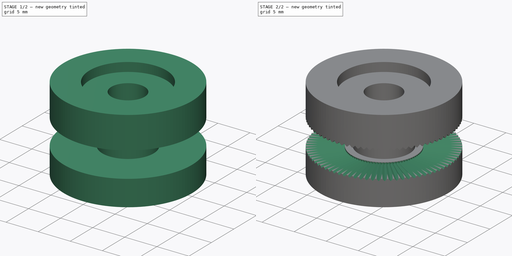
[diagram: build sequence overview — one tinted view per stage of 2, left to right]
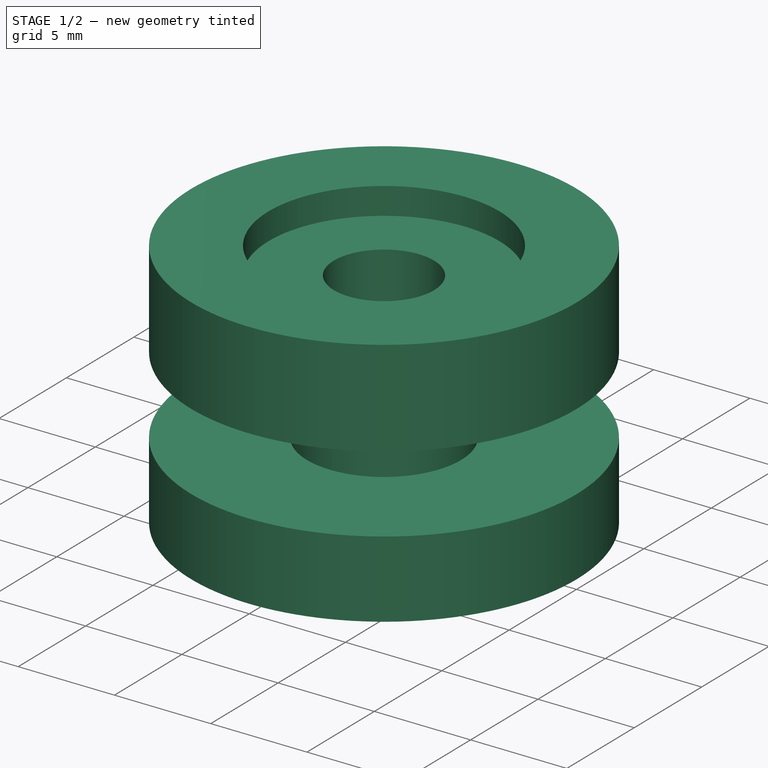
[diagram: stage 1 of 2 — iso view after this stage's code; geometry added in this stage tinted green]
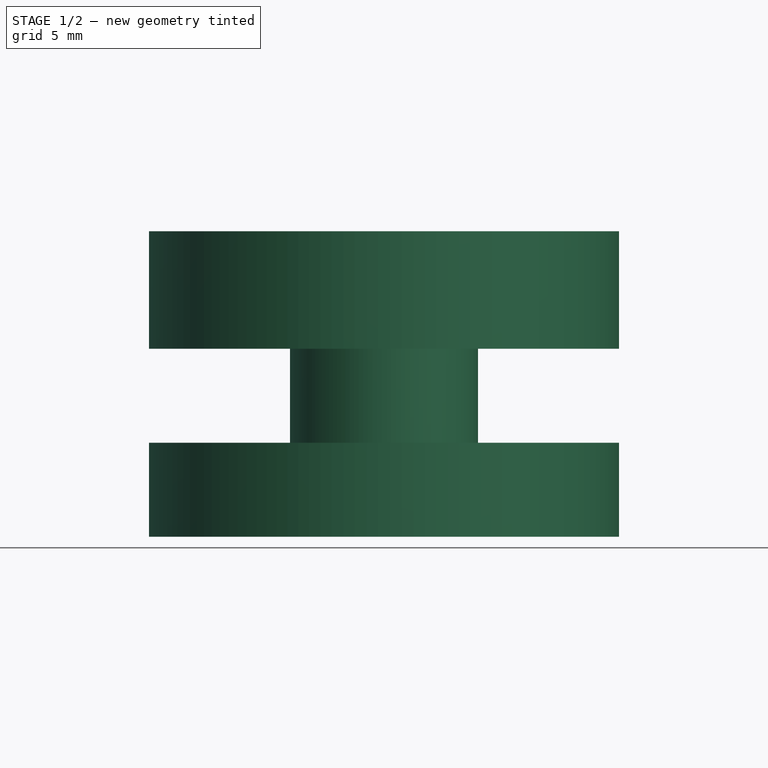
[diagram: stage 1 of 2 — front view after this stage's code; geometry added in this stage tinted green]
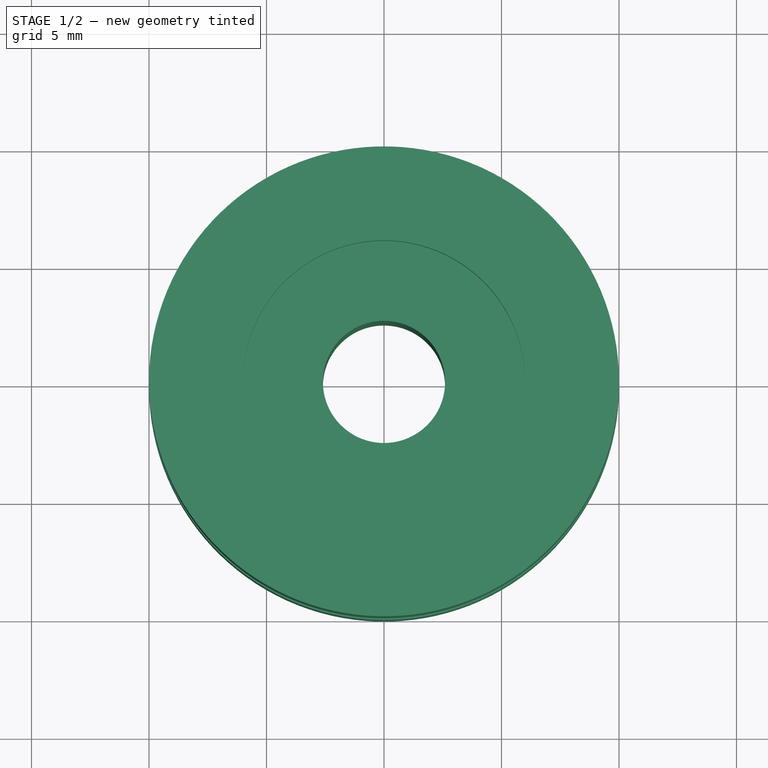
[diagram: stage 1 of 2 — top view after this stage's code; geometry added in this stage tinted green]
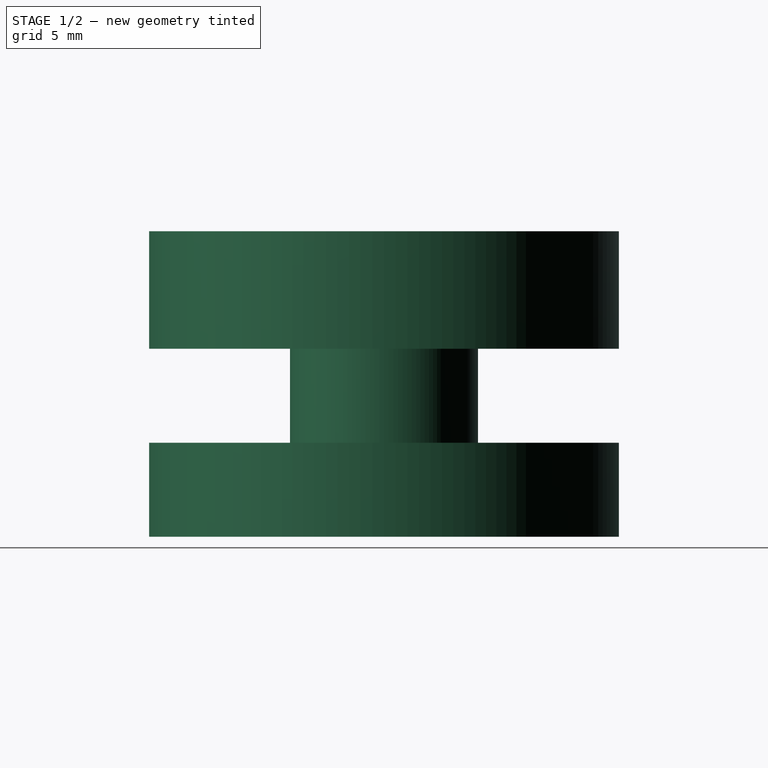
[diagram: stage 1 of 2 — right view after this stage's code; geometry added in this stage tinted green]
FCSTD DOCUMENT  (FreeCAD 0.20R29603 (Git))
Label: Carretel
License: All rights reserved
LicenseURL: http://en.wikipedia.org/wiki/All_rights_reserved
objects: Sketcher::SketchObject×3, PartDesign::Pocket×2, PartDesign::Revolution×1, PartDesign::Plane×1, PartDesign::PolarPattern×1, PartDesign::Body×1
note: 12 computed .brp shape members not serialized (recipe doc carries the construction recipe); baked Part::Feature solids carry a one-line shape summary decoded from their .brp

FEATURE [Sketcher::SketchObject] Sketch
  FullyConstrained = false
  MapMode = 5
  Placement = pos=(0,0,0) rot=(1,0,0;1.5708rad)
  Support = -> [XZ_Plane]
  sketch-geometry (10):
    g0: LineSegment StartX=0 StartY=0 StartZ=0 EndX=10 EndY=0 EndZ=0
    g1: LineSegment StartX=10 StartY=0 StartZ=0 EndX=10 EndY=4 EndZ=0
    g2: LineSegment StartX=10 StartY=4 StartZ=0 EndX=4 EndY=4 EndZ=0
    g3: LineSegment StartX=4 StartY=4 StartZ=0 EndX=4 EndY=8 EndZ=0
    g4: LineSegment StartX=4 StartY=8 StartZ=0 EndX=10 EndY=8 EndZ=0
    g5: LineSegment StartX=10 StartY=8 StartZ=0 EndX=10 EndY=13 EndZ=0
    g6: LineSegment StartX=10 StartY=13 StartZ=0 EndX=6 EndY=13 EndZ=0
    g7: LineSegment StartX=6 StartY=13 StartZ=0 EndX=6 EndY=11.6003 EndZ=0
    g8: LineSegment StartX=6 StartY=11.6003 StartZ=0 EndX=0 EndY=11.6003 EndZ=0
    g9: LineSegment StartX=0 StartY=11.6003 StartZ=0 EndX=0 EndY=0 EndZ=0
  constraints (28):
    c: Coincident(g0,g-1)
    c: PointOnObject(g0,g-1)
    c: Coincident(g1,g0)
    c: Vertical(g1)
    c: Coincident(g2,g1)
    c: Horizontal(g2)
    c: Coincident(g3,g2)
    c: Vertical(g3)
    c: Coincident(g4,g3)
    c: Horizontal(g4)
    c: Coincident(g5,g4)
    c: Vertical(g5)
    c: Coincident(g6,g5)
    c: Horizontal(g6)
    c: Coincident(g7,g6)
    c: Vertical(g7)
    c: Coincident(g8,g7)
    c: Horizontal(g8)
    c: Coincident(g9,g8)
    c: Coincident(g9,g0)
    c: Vertical(g9)
    c: DistanceX(g0,g0) = 10
    c: DistanceY(g1,g1) = 4
    c: DistanceY(g3,g3) = 4  'LadoDaTravaServo'
    c: DistanceY(g5,g5) = 5
    c: DistanceX(g2,g2) = 6
    c: DistanceX(g8,g8) = 6
    c: DistanceX(g6,g6) = 4
FEATURE [PartDesign::Revolution] Revolution
  Angle = 360
  Axis = (0,-2e-16,1)
  Base = (0,0,0)
  Placement = pos=(0,0,0) rot=(1,0,0;1.5708rad)
  Profile = -> Sketch
  ReferenceAxis = -> Sketch [V_Axis]
  Refine = true
  Reversed = true
FEATURE [PartDesign::Plane] DatumPlane
  Length = 60
  MapMode = 5
  Placement = pos=(0,0,0) rot=(1,0,0;3.14159rad)
  ResizeMode = 0
  Support = -> [Revolution]
  Width = 60
FEATURE [Sketcher::SketchObject] Sketch001  label="Eixo"
  FullyConstrained = true
  MapMode = 5
  Placement = pos=(0,0,0) rot=(1,0,0;3.14159rad)
  Support = -> [DatumPlane]
  sketch-geometry (1):
    g0: Circle CenterX=0 CenterY=0 CenterZ=0 NormalX=0 NormalY=0 NormalZ=1 AngleXU=0 Radius=2.6
  constraints (2):
    c: Coincident(g0,g-1)
    c: Radius(g0) = 2.6
FEATURE [PartDesign::Pocket] Pocket
  BaseFeature = -> Revolution
  Direction = (0,-2e-16,1)
  Length = 5
  Length2 = 5
  Placement = pos=(0,0,0) rot=(1,0,0;1.5708rad)
  Profile = -> Sketch001
  ReferenceAxis = -> Sketch001 [N_Axis]
  Refine = true
  Type = 1
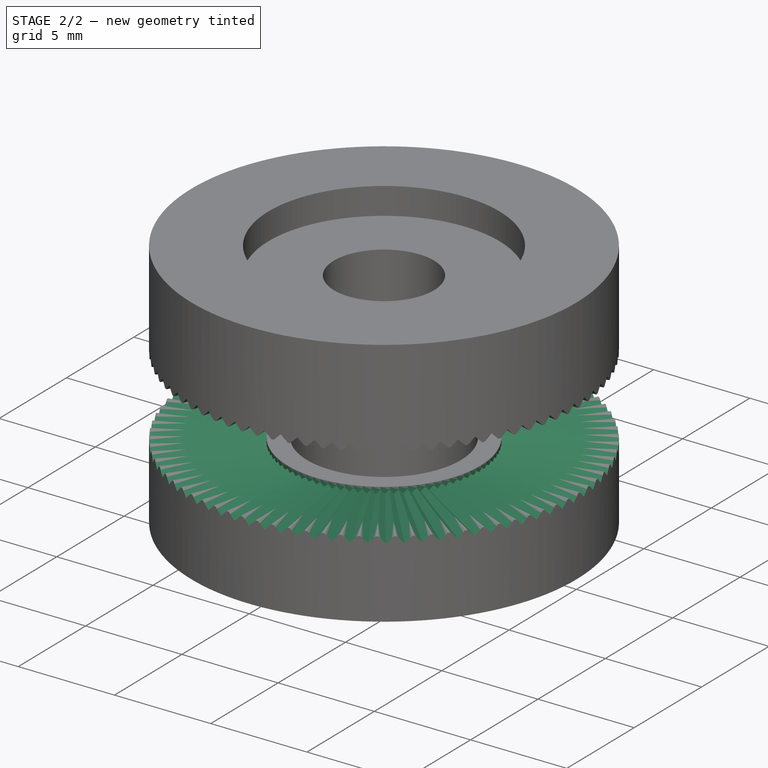
[diagram: stage 2 of 2 — iso view after this stage's code; geometry added in this stage tinted green]
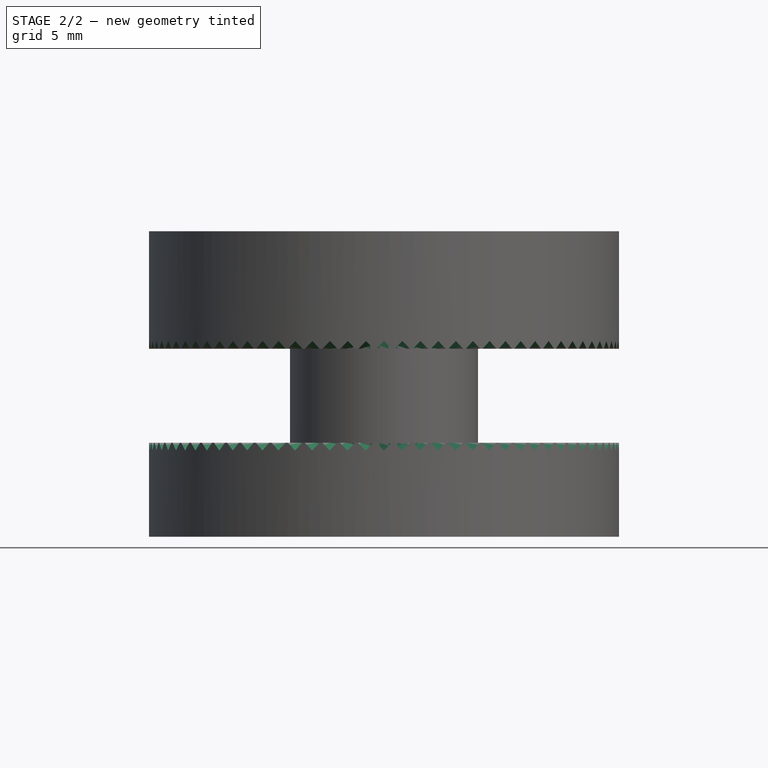
[diagram: stage 2 of 2 — front view after this stage's code; geometry added in this stage tinted green]
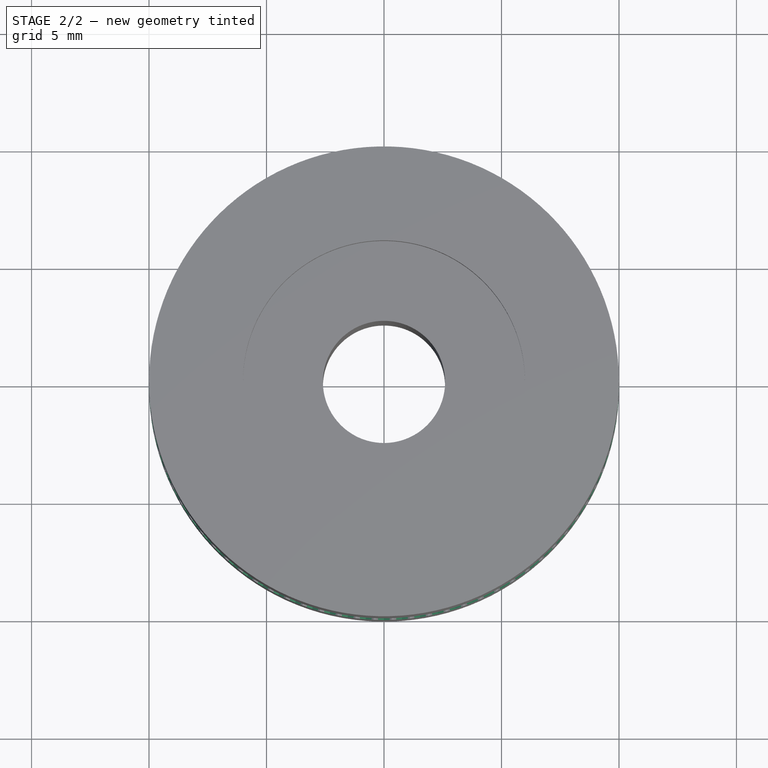
[diagram: stage 2 of 2 — top view after this stage's code; geometry added in this stage tinted green]
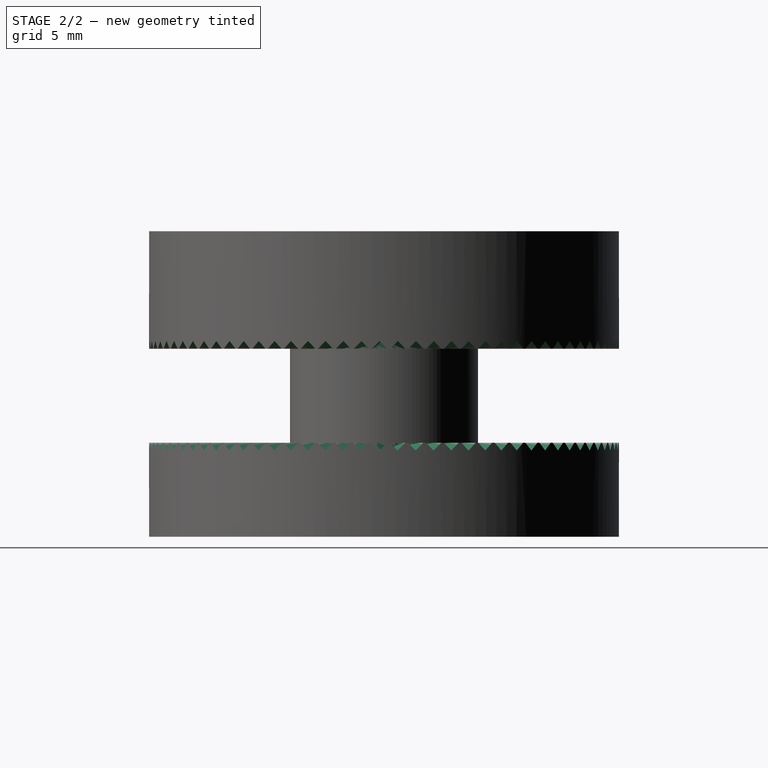
[diagram: stage 2 of 2 — right view after this stage's code; geometry added in this stage tinted green]
FEATURE [Sketcher::SketchObject] Sketch002  label="DenteTrava"
  AttachmentOffset = pos=(0,0,10) rot=(0,0,1;0rad)
  FullyConstrained = false
  MapMode = 5
  Placement = pos=(0,-10,-2.2e-15) rot=(1,0,0;1.5708rad)
  Support = -> [XZ_Plane]
  sketch-geometry (6):
    g0: GeomPoint X=0 Y=6 Z=0
    g1: LineSegment StartX=2.32999 StartY=5.99454 StartZ=0 EndX=0.005462 EndY=8.32999 EndZ=0
    g2: LineSegment StartX=0.005462 StartY=8.32999 StartZ=0 EndX=-2.32999 EndY=6.00546 EndZ=0
    g3: LineSegment StartX=-2.32999 StartY=6.00546 StartZ=0 EndX=-0.005462 EndY=3.67001 EndZ=0
    g4: LineSegment StartX=-0.005462 StartY=3.67001 StartZ=0 EndX=2.32999 EndY=5.99454 EndZ=0
    g5: Circle CenterX=0 CenterY=6 CenterZ=0 NormalX=0 NormalY=0 NormalZ=1 AngleXU=0 Radius=2.33
  constraints (15):
    c: PointOnObject(g0,g-2)
    c: Distance(g-1,g0) = 6
    c: Coincident(g1,g2)
    c: Coincident(g2,g3)
    c: Coincident(g3,g4)
    c: Coincident(g4,g1)
    c: Equal(g1,g2)
    c: Equal(g1,g3)
    c: Equal(g1,g4)
    c: PointOnObject(g1,g5)
    c: PointOnObject(g2,g5)
    c: PointOnObject(g3,g5)
    c: PointOnObject(g4,g5)
    c: Coincident(g5,g0)
    c: Distance(g2,g1) = 4.66
FEATURE [PartDesign::Pocket] Pocket001
  BaseFeature = -> Pocket
  Direction = (0,1,2e-16)
  Length = 5
  Length2 = 5
  Placement = pos=(0,0,0) rot=(1,0,0;1.5708rad)
  Profile = -> Sketch002
  ReferenceAxis = -> Sketch002 [N_Axis]
  Refine = true
  Type = 0
FEATURE [PartDesign::PolarPattern] PolarPattern
  Angle = 360
  Axis = -> Z_Axis
  BaseFeature = -> Pocket001
  Occurrences = 81
  Originals = -> [Pocket001]
  Placement = pos=(0,0,0) rot=(1,0,0;1.5708rad)
  Refine = true
FEATURE [PartDesign::Body] Body
  Group = -> [Sketch,Revolution,DatumPlane,Sketch001,Pocket,Sketch002,Pocket001,PolarPattern]
  Origin = -> Origin
  Tip = -> PolarPattern
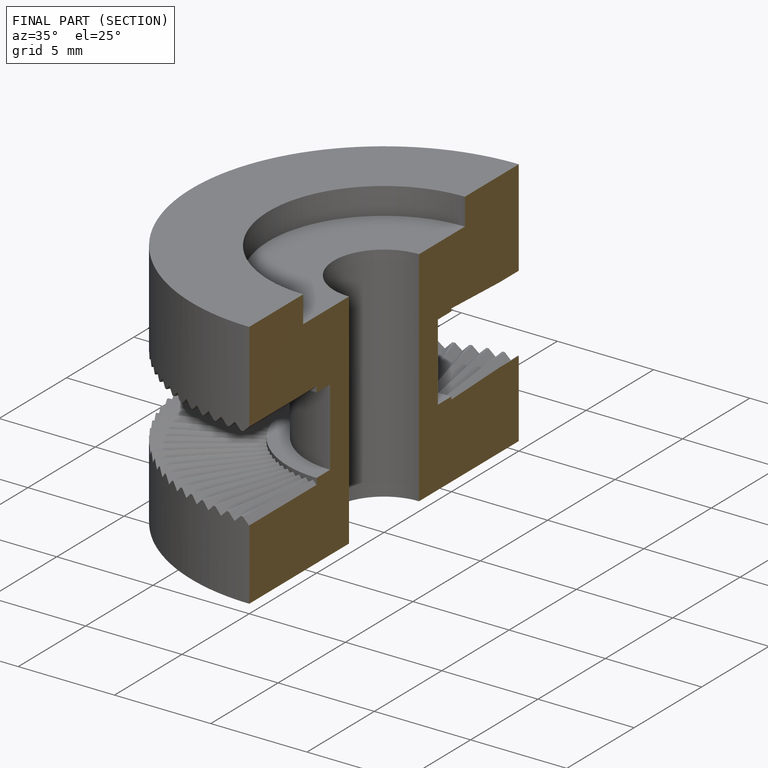
[diagram: finished part — half-section view (interior)]
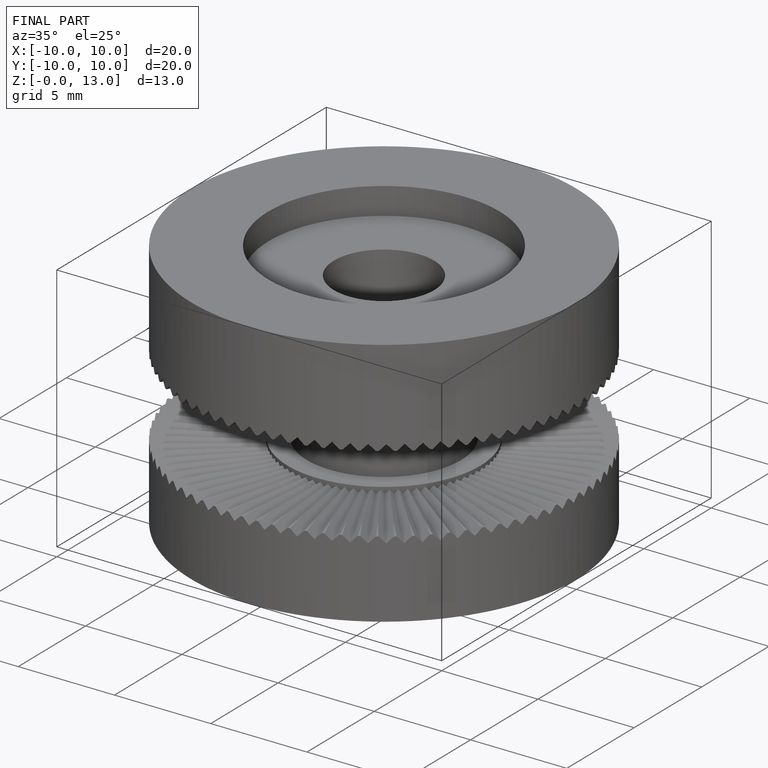
[diagram: finished part — iso view with bounding-box wireframe]
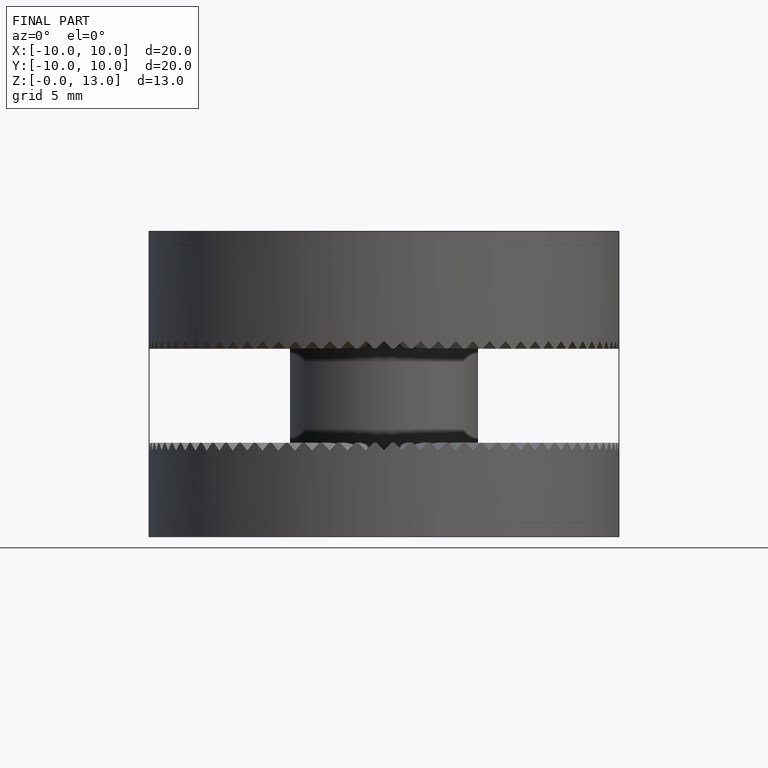
[diagram: finished part — front view with bounding-box wireframe]
